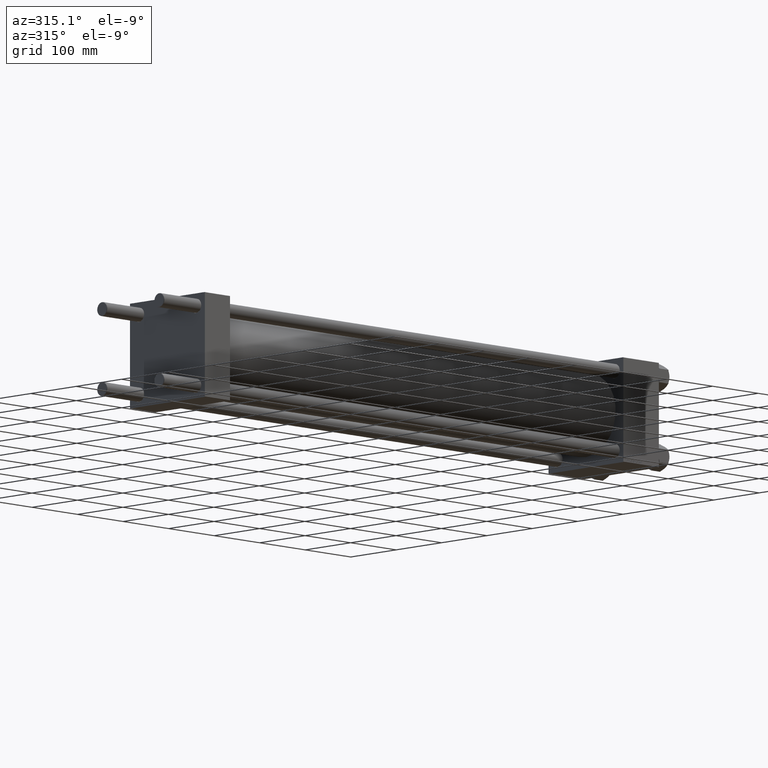
[diagram: clean part render]
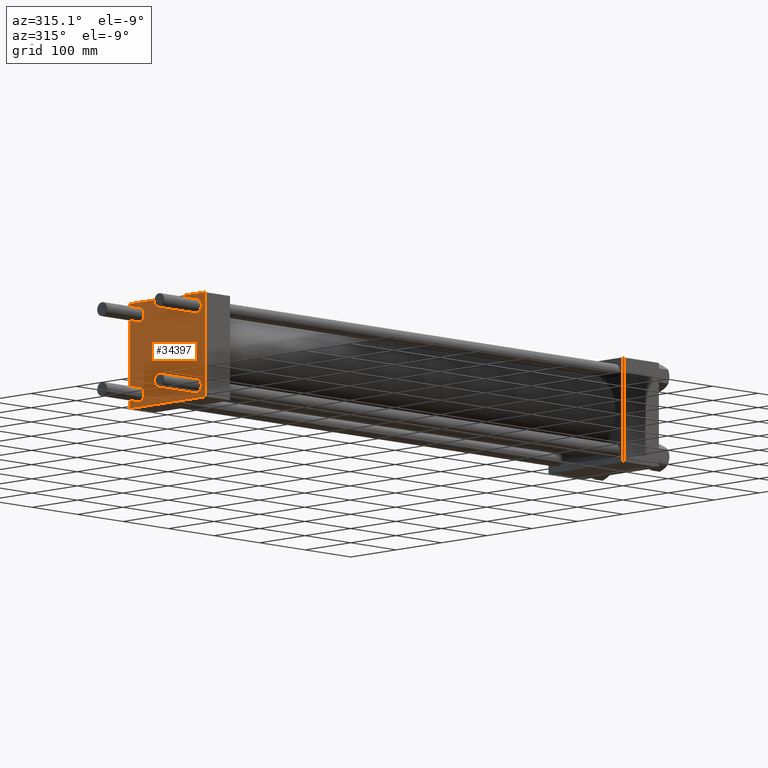
[diagram: same view with one face highlighted and labeled with its STEP entity id]
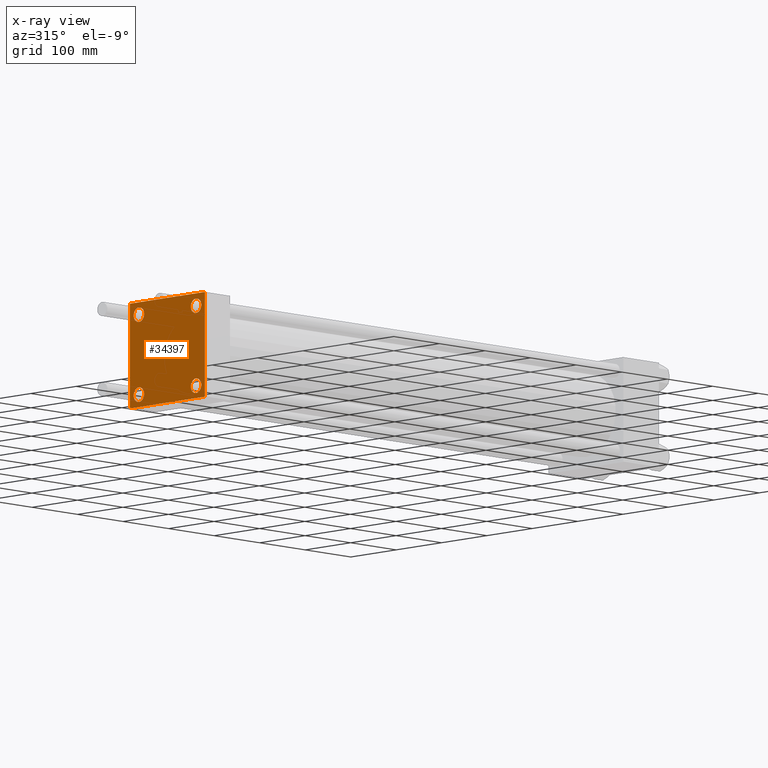
[diagram: x-ray of the same camera — body ghosted, the highlighted face saturated]
A machine part, auxiliary view. The second image highlights one B-rep face of the part: STEP entity #34397.
The next image is the same camera in x-ray: the body ghosted, the highlighted face saturated — about 0% of this face is hidden behind the body in this view.
In plain terms, the highlighted planar face has unit normal (-1, 0, 0).
Its self-contained STEP definition (entity closure, byte-faithful):
#131 = DIRECTION ( 'NONE',  ( 1.000000000000000000, -0.000000000000000000, -0.000000000000000000 ) ) ;
#464 = DIRECTION ( 'NONE',  ( 1.000000000000000000, -0.000000000000000000, -0.000000000000000000 ) ) ;
#789 = VERTEX_POINT ( 'NONE', #38712 ) ;
#2491 = AXIS2_PLACEMENT_3D ( 'NONE', #10390, #5845, #41414 ) ;
#2660 = CARTESIAN_POINT ( 'NONE',  ( 0.000000000000000000, 82.25000000000001421, -82.25000000000001421 ) ) ;
#2671 = PLANE ( 'NONE',  #11108 ) ;
#3580 = AXIS2_PLACEMENT_3D ( 'NONE', #16740, #464, #24109 ) ;
#3689 = CIRCLE ( 'NONE', #48407, 11.50000000000001066 ) ;
#4493 = EDGE_CURVE ( 'NONE', #11154, #36961, #11298, .T. ) ;
#4821 = VECTOR ( 'NONE', #28317, 1000.000000000000114 ) ;
#4958 = CARTESIAN_POINT ( 'NONE',  ( 0.000000000000000000, -62.94999999999998153, -62.95000000000001705 ) ) ;
#5095 = EDGE_LOOP ( 'NONE', ( #20182, #18692 ) ) ;
#5845 = DIRECTION ( 'NONE',  ( 1.000000000000000000, -0.000000000000000000, -0.000000000000000000 ) ) ;
#6187 = CARTESIAN_POINT ( 'NONE',  ( 0.000000000000000000, -62.94999999999998153, 62.95000000000001705 ) ) ;
#6450 = ORIENTED_EDGE ( 'NONE', *, *, #48313, .T. ) ;
#6479 = FACE_BOUND ( 'NONE', #6721, .T. ) ;
#6721 = EDGE_LOOP ( 'NONE', ( #47749, #28721 ) ) ;
#6743 = VERTEX_POINT ( 'NONE', #39208 ) ;
#6873 = ORIENTED_EDGE ( 'NONE', *, *, #44684, .T. ) ;
#6962 = VECTOR ( 'NONE', #6973, 1000.000000000000114 ) ;
#6973 = DIRECTION ( 'NONE',  ( 0.000000000000000000, 0.7071067811865474617, -0.7071067811865474617 ) ) ;
#7118 = EDGE_CURVE ( 'NONE', #36043, #33903, #12132, .T. ) ;
#7784 = DIRECTION ( 'NONE',  ( 1.000000000000000000, -0.000000000000000000, -0.000000000000000000 ) ) ;
#7808 = EDGE_CURVE ( 'NONE', #40588, #24078, #9751, .T. ) ;
#7840 = ORIENTED_EDGE ( 'NONE', *, *, #35648, .T. ) ;
#8072 = AXIS2_PLACEMENT_3D ( 'NONE', #4958, #131, #15639 ) ;
#9726 = EDGE_CURVE ( 'NONE', #13573, #28689, #19340, .T. ) ;
#9751 = CIRCLE ( 'NONE', #43027, 11.50000000000001066 ) ;
#10242 = CARTESIAN_POINT ( 'NONE',  ( 0.000000000000000000, 82.50000000000002842, -82.00000000000000000 ) ) ;
#10390 = CARTESIAN_POINT ( 'NONE',  ( 0.000000000000000000, -62.94999999999998153, -62.95000000000001705 ) ) ;
#11108 = AXIS2_PLACEMENT_3D ( 'NONE', #49207, #14361, #29879 ) ;
#11154 = VERTEX_POINT ( 'NONE', #43578 ) ;
#11298 = CIRCLE ( 'NONE', #15361, 11.50000000000001066 ) ;
#11455 = CARTESIAN_POINT ( 'NONE',  ( 0.000000000000000000, 82.50000000000002842, 82.50000000000002842 ) ) ;
#11614 = ORIENTED_EDGE ( 'NONE', *, *, #7118, .T. ) ;
#11699 = VERTEX_POINT ( 'NONE', #28513 ) ;
#12132 = CIRCLE ( 'NONE', #2491, 11.50000000000001066 ) ;
#12563 = CARTESIAN_POINT ( 'NONE',  ( 0.000000000000000000, 82.00000000000005684, 82.50000000000002842 ) ) ;
#12797 = CARTESIAN_POINT ( 'NONE',  ( 0.000000000000000000, -82.25000000000000000, 82.25000000000000000 ) ) ;
#13265 = VECTOR ( 'NONE', #35595, 1000.000000000000000 ) ;
#13573 = VERTEX_POINT ( 'NONE', #19396 ) ;
#13883 = CARTESIAN_POINT ( 'NONE',  ( 0.000000000000000000, 62.95000000000000284, 62.95000000000000284 ) ) ;
#14257 = LINE ( 'NONE', #18843, #36217 ) ;
#14361 = DIRECTION ( 'NONE',  ( -1.000000000000000000, 0.000000000000000000, 0.000000000000000000 ) ) ;
#14911 = CARTESIAN_POINT ( 'NONE',  ( 0.000000000000000000, 62.95000000000000284, -62.95000000000000284 ) ) ;
#15130 = CARTESIAN_POINT ( 'NONE',  ( 0.000000000000000000, 82.50000000000002842, 82.50000000000002842 ) ) ;
#15320 = CARTESIAN_POINT ( 'NONE',  ( 0.000000000000000000, -62.94999999999998153, 74.45000000000003126 ) ) ;
#15361 = AXIS2_PLACEMENT_3D ( 'NONE', #6187, #49405, #41023 ) ;
#15639 = DIRECTION ( 'NONE',  ( 0.000000000000000000, 0.000000000000000000, 1.000000000000000000 ) ) ;
#16701 = DIRECTION ( 'NONE',  ( 1.000000000000000000, -0.000000000000000000, -0.000000000000000000 ) ) ;
#16740 = CARTESIAN_POINT ( 'NONE',  ( 0.000000000000000000, 62.95000000000000284, 62.95000000000000284 ) ) ;
#17260 = EDGE_CURVE ( 'NONE', #44161, #6743, #17297, .T. ) ;
#17297 = LINE ( 'NONE', #32048, #13265 ) ;
#17823 = EDGE_LOOP ( 'NONE', ( #42986, #6450, #18185, #32309, #40087, #6873, #18644, #48999 ) ) ;
#17944 = DIRECTION ( 'NONE',  ( 0.000000000000000000, -1.682156097916903588E-16, -1.000000000000000000 ) ) ;
#18185 = ORIENTED_EDGE ( 'NONE', *, *, #17260, .T. ) ;
#18235 = CARTESIAN_POINT ( 'NONE',  ( 0.000000000000000000, 62.95000000000000284, -51.44999999999999574 ) ) ;
#18644 = ORIENTED_EDGE ( 'NONE', *, *, #36228, .F. ) ;
#18692 = ORIENTED_EDGE ( 'NONE', *, *, #23934, .T. ) ;
#18843 = CARTESIAN_POINT ( 'NONE',  ( 0.000000000000000000, -82.25000000000115108, -82.24999999999886313 ) ) ;
#19207 = DIRECTION ( 'NONE',  ( 0.000000000000000000, -1.000000000000000000, -8.410780489584519171E-17 ) ) ;
#19340 = LINE ( 'NONE', #11455, #44719 ) ;
#19396 = CARTESIAN_POINT ( 'NONE',  ( 0.000000000000000000, 82.50000000000002842, 82.00000000000005684 ) ) ;
#19445 = CIRCLE ( 'NONE', #8072, 11.50000000000001066 ) ;
#19636 = DIRECTION ( 'NONE',  ( 0.000000000000000000, 0.000000000000000000, 1.000000000000000000 ) ) ;
#20182 = ORIENTED_EDGE ( 'NONE', *, *, #45554, .T. ) ;
#20281 = EDGE_LOOP ( 'NONE', ( #7840, #31546 ) ) ;
#20998 = DIRECTION ( 'NONE',  ( 0.000000000000000000, 0.000000000000000000, 1.000000000000000000 ) ) ;
#21686 = AXIS2_PLACEMENT_3D ( 'NONE', #32345, #24196, #19636 ) ;
#21983 = CARTESIAN_POINT ( 'NONE',  ( 0.000000000000000000, 62.95000000000000284, -62.95000000000000284 ) ) ;
#23934 = EDGE_CURVE ( 'NONE', #46201, #32834, #25523, .T. ) ;
#24078 = VERTEX_POINT ( 'NONE', #18235 ) ;
#24109 = DIRECTION ( 'NONE',  ( 0.000000000000000000, 0.000000000000000000, 1.000000000000000000 ) ) ;
#24196 = DIRECTION ( 'NONE',  ( 1.000000000000000000, -0.000000000000000000, -0.000000000000000000 ) ) ;
#25331 = LINE ( 'NONE', #49213, #45206 ) ;
#25523 = CIRCLE ( 'NONE', #3580, 11.50000000000001066 ) ;
#26008 = VECTOR ( 'NONE', #44400, 1000.000000000000114 ) ;
#26144 = CARTESIAN_POINT ( 'NONE',  ( 0.000000000000000000, 62.95000000000000284, 51.44999999999999574 ) ) ;
#28317 = DIRECTION ( 'NONE',  ( -0.000000000000000000, 0.7071067811865474617, 0.7071067811865474617 ) ) ;
#28513 = CARTESIAN_POINT ( 'NONE',  ( 0.000000000000000000, -81.99999999999997158, 82.50000000000001421 ) ) ;
#28689 = VERTEX_POINT ( 'NONE', #10242 ) ;
#28721 = ORIENTED_EDGE ( 'NONE', *, *, #7808, .T. ) ;
#28873 = DIRECTION ( 'NONE',  ( 1.000000000000000000, -0.000000000000000000, -0.000000000000000000 ) ) ;
#28977 = CARTESIAN_POINT ( 'NONE',  ( 0.000000000000000000, 62.95000000000000284, -74.45000000000001705 ) ) ;
#29228 = AXIS2_PLACEMENT_3D ( 'NONE', #13883, #16701, #32963 ) ;
#29272 = EDGE_CURVE ( 'NONE', #44644, #789, #25331, .T. ) ;
#29273 = CARTESIAN_POINT ( 'NONE',  ( 0.000000000000000000, -62.94999999999998153, -74.45000000000003126 ) ) ;
#29385 = VERTEX_POINT ( 'NONE', #12563 ) ;
#29633 = FACE_BOUND ( 'NONE', #20281, .T. ) ;
#29879 = DIRECTION ( 'NONE',  ( 0.000000000000000000, 0.000000000000000000, 1.000000000000000000 ) ) ;
#30637 = LINE ( 'NONE', #15130, #33081 ) ;
#31546 = ORIENTED_EDGE ( 'NONE', *, *, #4493, .T. ) ;
#32048 = CARTESIAN_POINT ( 'NONE',  ( 0.000000000000000000, 82.50000000000002842, -82.49999999999997158 ) ) ;
#32127 = CARTESIAN_POINT ( 'NONE',  ( 0.000000000000000000, -82.49999999999997158, 82.00000000000001421 ) ) ;
#32293 = EDGE_CURVE ( 'NONE', #24078, #40588, #3689, .T. ) ;
#32309 = ORIENTED_EDGE ( 'NONE', *, *, #37241, .T. ) ;
#32345 = CARTESIAN_POINT ( 'NONE',  ( 0.000000000000000000, -62.94999999999998153, 62.95000000000001705 ) ) ;
#32575 = EDGE_CURVE ( 'NONE', #29385, #13573, #38473, .T. ) ;
#32834 = VERTEX_POINT ( 'NONE', #43837 ) ;
#32963 = DIRECTION ( 'NONE',  ( 0.000000000000000000, 0.000000000000000000, 1.000000000000000000 ) ) ;
#33081 = VECTOR ( 'NONE', #19207, 1000.000000000000000 ) ;
#33086 = EDGE_LOOP ( 'NONE', ( #11614, #37314 ) ) ;
#33903 = VERTEX_POINT ( 'NONE', #29273 ) ;
#34397 = ADVANCED_FACE ( 'NONE', ( #29633, #36992, #6479, #37489, #40586 ), #2671, .T. ) ;
#35595 = DIRECTION ( 'NONE',  ( 0.000000000000000000, -1.000000000000000000, -1.682156097916903588E-16 ) ) ;
#35648 = EDGE_CURVE ( 'NONE', #36961, #11154, #50084, .T. ) ;
#35672 = LINE ( 'NONE', #12797, #4821 ) ;
#36043 = VERTEX_POINT ( 'NONE', #43225 ) ;
#36217 = VECTOR ( 'NONE', #37391, 999.9999999999998863 ) ;
#36228 = EDGE_CURVE ( 'NONE', #29385, #11699, #30637, .T. ) ;
#36961 = VERTEX_POINT ( 'NONE', #15320 ) ;
#36992 = FACE_BOUND ( 'NONE', #33086, .T. ) ;
#37241 = EDGE_CURVE ( 'NONE', #6743, #789, #14257, .T. ) ;
#37314 = ORIENTED_EDGE ( 'NONE', *, *, #46582, .T. ) ;
#37391 = DIRECTION ( 'NONE',  ( 0.000000000000000000, -0.7071067811865376918, 0.7071067811865574537 ) ) ;
#37489 = FACE_BOUND ( 'NONE', #5095, .T. ) ;
#38088 = CARTESIAN_POINT ( 'NONE',  ( 0.000000000000000000, 82.00000000000005684, -82.49999999999997158 ) ) ;
#38473 = LINE ( 'NONE', #42563, #6962 ) ;
#38535 = DIRECTION ( 'NONE',  ( 0.000000000000000000, 0.000000000000000000, 1.000000000000000000 ) ) ;
#38712 = CARTESIAN_POINT ( 'NONE',  ( 0.000000000000000000, -82.50000000000000000, -81.99999999999998579 ) ) ;
#39208 = CARTESIAN_POINT ( 'NONE',  ( 0.000000000000000000, -82.00000000000000000, -82.50000000000000000 ) ) ;
#40087 = ORIENTED_EDGE ( 'NONE', *, *, #29272, .F. ) ;
#40586 = FACE_OUTER_BOUND ( 'NONE', #17823, .T. ) ;
#40588 = VERTEX_POINT ( 'NONE', #28977 ) ;
#41023 = DIRECTION ( 'NONE',  ( 0.000000000000000000, 0.000000000000000000, 1.000000000000000000 ) ) ;
#41414 = DIRECTION ( 'NONE',  ( 0.000000000000000000, 0.000000000000000000, 1.000000000000000000 ) ) ;
#42563 = CARTESIAN_POINT ( 'NONE',  ( 0.000000000000000000, 82.25000000000002842, 82.25000000000002842 ) ) ;
#42986 = ORIENTED_EDGE ( 'NONE', *, *, #9726, .T. ) ;
#43027 = AXIS2_PLACEMENT_3D ( 'NONE', #21983, #28873, #20998 ) ;
#43225 = CARTESIAN_POINT ( 'NONE',  ( 0.000000000000000000, -62.94999999999998153, -51.45000000000000995 ) ) ;
#43578 = CARTESIAN_POINT ( 'NONE',  ( 0.000000000000000000, -62.94999999999998153, 51.45000000000000995 ) ) ;
#43837 = CARTESIAN_POINT ( 'NONE',  ( 0.000000000000000000, 62.95000000000000284, 74.45000000000001705 ) ) ;
#44161 = VERTEX_POINT ( 'NONE', #38088 ) ;
#44400 = DIRECTION ( 'NONE',  ( -0.000000000000000000, -0.7071067811865474617, -0.7071067811865474617 ) ) ;
#44644 = VERTEX_POINT ( 'NONE', #32127 ) ;
#44684 = EDGE_CURVE ( 'NONE', #44644, #11699, #35672, .T. ) ;
#44719 = VECTOR ( 'NONE', #46805, 1000.000000000000000 ) ;
#45206 = VECTOR ( 'NONE', #17944, 1000.000000000000000 ) ;
#45554 = EDGE_CURVE ( 'NONE', #32834, #46201, #46273, .T. ) ;
#46201 = VERTEX_POINT ( 'NONE', #26144 ) ;
#46273 = CIRCLE ( 'NONE', #29228, 11.50000000000001066 ) ;
#46582 = EDGE_CURVE ( 'NONE', #33903, #36043, #19445, .T. ) ;
#46805 = DIRECTION ( 'NONE',  ( 0.000000000000000000, 0.000000000000000000, -1.000000000000000000 ) ) ;
#47749 = ORIENTED_EDGE ( 'NONE', *, *, #32293, .T. ) ;
#48313 = EDGE_CURVE ( 'NONE', #28689, #44161, #48462, .T. ) ;
#48407 = AXIS2_PLACEMENT_3D ( 'NONE', #14911, #7784, #38535 ) ;
#48462 = LINE ( 'NONE', #2660, #26008 ) ;
#48999 = ORIENTED_EDGE ( 'NONE', *, *, #32575, .T. ) ;
#49207 = CARTESIAN_POINT ( 'NONE',  ( 0.000000000000000000, 0.000000000000000000, 0.000000000000000000 ) ) ;
#49213 = CARTESIAN_POINT ( 'NONE',  ( 0.000000000000000000, -82.49999999999997158, 82.50000000000001421 ) ) ;
#49405 = DIRECTION ( 'NONE',  ( 1.000000000000000000, -0.000000000000000000, -0.000000000000000000 ) ) ;
#50084 = CIRCLE ( 'NONE', #21686, 11.50000000000001066 ) ;